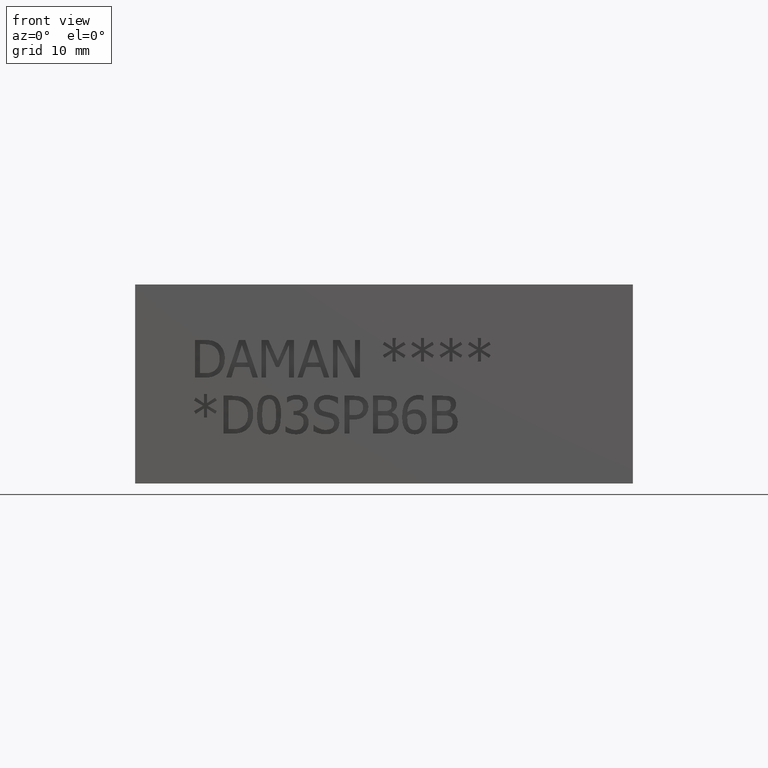
[diagram: clean part render]
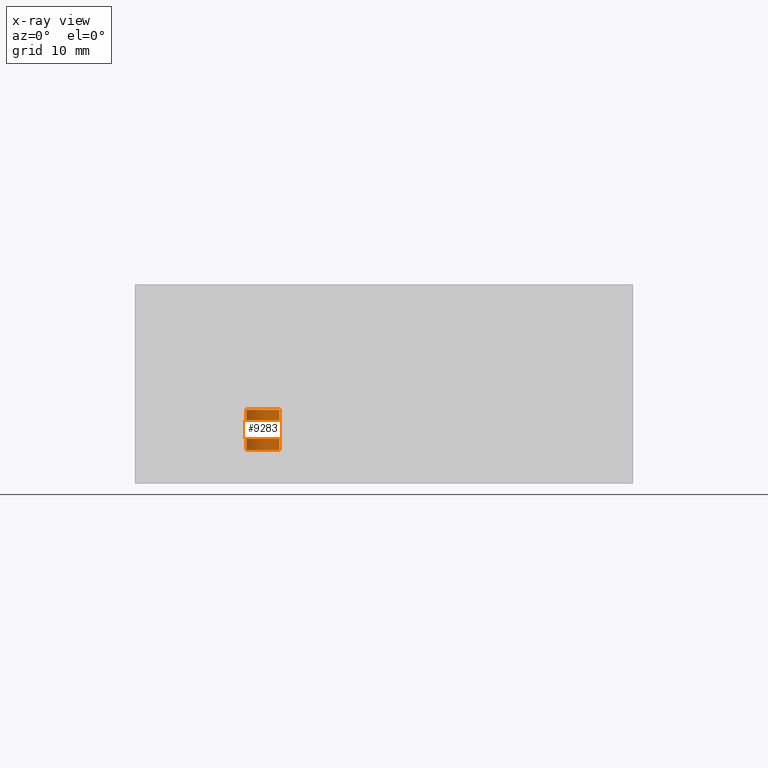
[diagram: x-ray — body ghosted, one internal face saturated and labeled with its STEP entity id]
A machine part, front view, then the same camera in x-ray: the body is ghosted and one INTERNAL B-rep face — a face not visible from any outside direction — is saturated and labeled: STEP entity #9283.
In plain terms, the highlighted cylindrical surface (bore or boss wall) has radius 2.1082 mm, axis along (0, 0, 1).
Its self-contained STEP definition (entity closure, byte-faithful):
#55=CYLINDRICAL_SURFACE('',#9726,2.1082);
#153=CIRCLE('',#9717,2.1082);
#154=CIRCLE('',#9718,2.1082);
#157=CIRCLE('',#9722,2.1082);
#987=FACE_OUTER_BOUND('',#1513,.T.);
#1513=EDGE_LOOP('',(#8191,#8192,#8193,#8194,#8195));
#2413=LINE('',#15918,#3293);
#3293=VECTOR('',#11455,2.1082);
#4426=VERTEX_POINT('',#15898);
#4427=VERTEX_POINT('',#15899);
#4431=VERTEX_POINT('',#15909);
#5693=EDGE_CURVE('',#4426,#4427,#153,.T.);
#5695=EDGE_CURVE('',#4427,#4426,#154,.T.);
#5698=EDGE_CURVE('',#4431,#4431,#157,.T.);
#5702=EDGE_CURVE('',#4431,#4427,#2413,.T.);
#8191=ORIENTED_EDGE('',*,*,#5698,.T.);
#8192=ORIENTED_EDGE('',*,*,#5702,.T.);
#8193=ORIENTED_EDGE('',*,*,#5693,.F.);
#8194=ORIENTED_EDGE('',*,*,#5695,.F.);
#8195=ORIENTED_EDGE('',*,*,#5702,.F.);
#9283=ADVANCED_FACE('',(#987),#55,.F.);
#9717=AXIS2_PLACEMENT_3D('',#15900,#11433,#11434);
#9718=AXIS2_PLACEMENT_3D('',#15903,#11436,#11437);
#9722=AXIS2_PLACEMENT_3D('',#15910,#11444,#11445);
#9726=AXIS2_PLACEMENT_3D('',#15917,#11453,#11454);
#11433=DIRECTION('center_axis',(0.,0.,1.));
#11434=DIRECTION('ref_axis',(1.,0.,0.));
#11436=DIRECTION('center_axis',(0.,0.,1.));
#11437=DIRECTION('ref_axis',(1.,0.,0.));
#11444=DIRECTION('center_axis',(0.,0.,1.));
#11445=DIRECTION('ref_axis',(1.,0.,0.));
#11453=DIRECTION('center_axis',(0.,0.,1.));
#11454=DIRECTION('ref_axis',(1.,0.,0.));
#11455=DIRECTION('',(0.,0.,-1.));
#15898=CARTESIAN_POINT('',(18.3896,53.1876,4.2672));
#15899=CARTESIAN_POINT('',(14.1732,53.1876,4.2672));
#15900=CARTESIAN_POINT('Origin',(16.2814,53.1876,4.2672));
#15903=CARTESIAN_POINT('Origin',(16.2814,53.1876,4.2672));
#15909=CARTESIAN_POINT('',(14.1732,53.1876,9.398));
#15910=CARTESIAN_POINT('Origin',(16.2814,53.1876,9.398));
#15917=CARTESIAN_POINT('Origin',(16.2814,53.1876,14.8336));
#15918=CARTESIAN_POINT('',(14.1732,53.1876,14.8336));